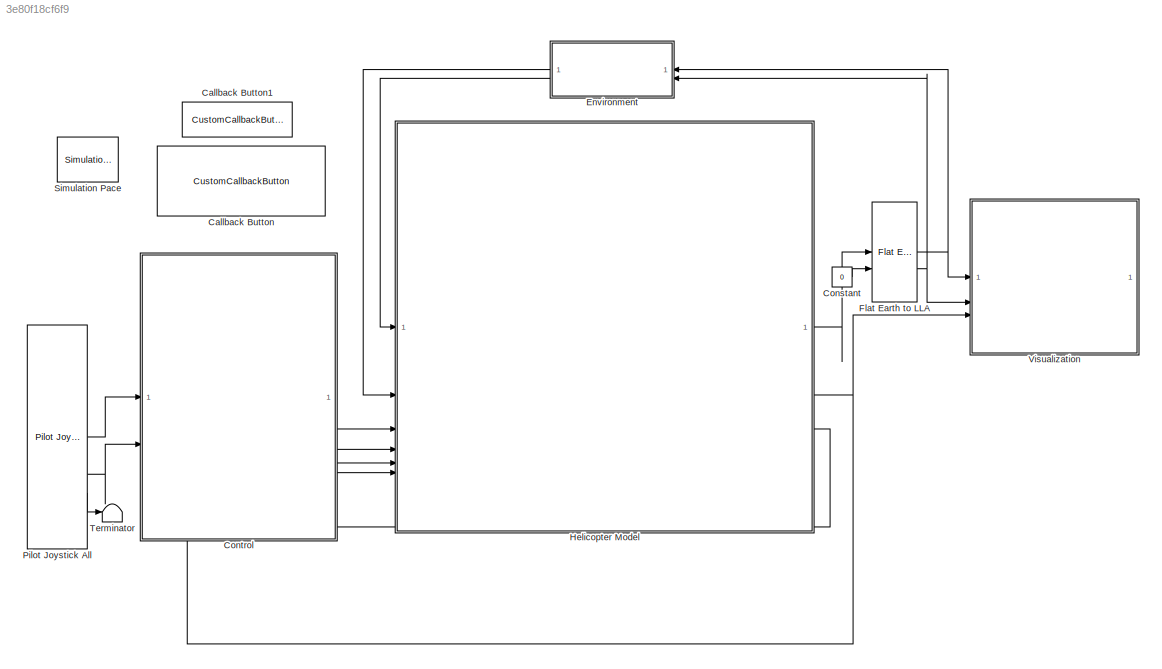
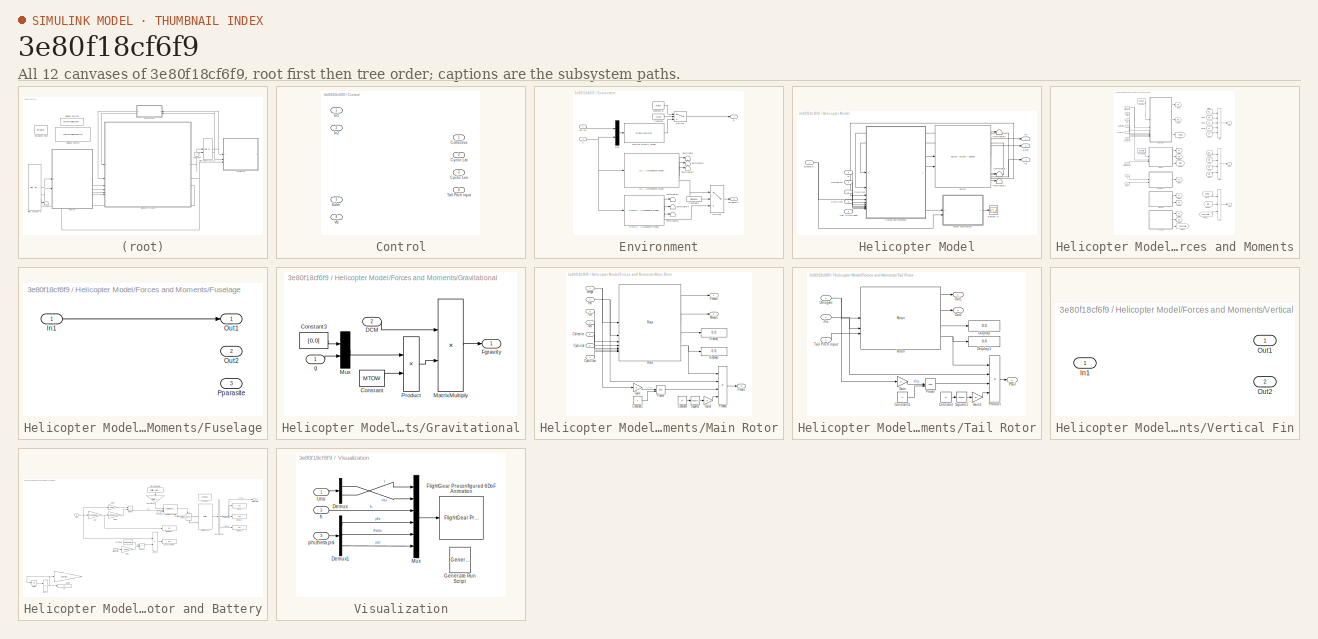
[diagram: thumbnail index - all 12 canvases of the model, root first then tree order]
MODEL slx_3e80f18cf6f9
KIND model
CONFIG AbsTol = auto
CONFIG EnableMultiTasking = off
CONFIG FixedStep = auto
CONFIG MaxStep = auto
CONFIG MinStep = auto
CONFIG RelTol = 1e-3
CONFIG SampleTimeConstraint = Unconstrained
CONFIG SolverName = VariableStepAuto
CONFIG StartTime = 0.0
CONFIG StopTime = 10.0
BLOCK [CustomCallbackButton] Callback Button
  Configuration = {"components":[{"name":"BackgroundImageComponent","settings":{"image":{"size":[0,0],"src":"default","srcOrientation":"Right"},"position":[0,0,1,1]}},{"name":"ButtonStateComponent","settings":{"buttonType":"momentary","clickFcn":"run(\"HelicopterParameterEstimation.mlapp\");","onValue":1,"position":[0,0,1,1],"pressDelay":"500","pressFcn":"","repeatInterval":"0","states":[{"horizontalAlignment":"cen...<+2128ch>
  CustomBackgroundColor = {"color":[0.9568627451,0.9568627451,0.9568627451],"show":true}
BLOCK [CustomCallbackButton] Callback Button1
  Configuration = {"components":[{"name":"BackgroundImageComponent","settings":{"image":{"size":[0,0],"src":"default","srcOrientation":"Right"},"position":[0,0,1,1]}},{"name":"ButtonStateComponent","settings":{"buttonType":"momentary","clickFcn":"clc; clear; close all;","onValue":1,"position":[0,0,1,1],"pressDelay":"500","pressFcn":"","repeatInterval":"0","states":[{"horizontalAlignment":"center","image":{"position...<+2029ch>
  CustomBackgroundColor = {"color":[0.9568627451,0.9568627451,0.9568627451],"show":true}
BLOCK [Constant] Constant
  Value = 0
BLOCK [SubSystem] Control
  PortSchema = {"entries":[{"content":{"sides":[{"content":{"connectorIds":["In1","In2"]},"type":"ConnectorPlacement.EquallySpacedRectSide","uuid":"528401e7-0fef-44be-ba63-acf96d247fb7"},{"content":{"connectorIds":["Out1","Out2","Out3","Out4"],"side":"RIGHT"},"type":"ConnectorPlacement.EquallySpacedRectSide","uuid":"314663aa-6cd9-4175-a49a-1575f8a7b87b"},{"content":{"side":"TOP"},"type":"ConnectorPlacement.Equal...<+404ch>
BLOCK [Outport] Control/Collective
BLOCK [Outport] Control/Cyclic Lat
  Port = 2
BLOCK [Outport] Control/Cyclic Lon
  Port = 3
BLOCK [Inport] Control/Euler
  Port = 3
BLOCK [Inport] Control/In1
BLOCK [Inport] Control/In2
  Port = 2
BLOCK [Outport] Control/Tail Pitch input
  Port = 4
BLOCK [Inport] Control/Vb
  Port = 4
BLOCK [SubSystem] Environment
BLOCK [Reference] Environment/COESA Atmosphere Model  REF=aerolibatmos2/COESA Atmosphere Model
  SourceBlock = aerolibatmos2/COESA Atmosphere Model
  SourceType = Atmosphere Model
BLOCK [Constant] Environment/Constant
  Value = consg
BLOCK [Constant] Environment/Constant1
  Value = atmomodel
BLOCK [Reference] Environment/ISA Atmosphere Model  REF=aerolibatmos2/ISA Atmosphere Model
  SourceBlock = aerolibatmos2/ISA Atmosphere Model
  SourceType = International Standard Atmosphere Model
BLOCK [Mux] Environment/Mux
  DisplayOption = bar
  Inputs = 2
BLOCK [Switch] Environment/Switch
  Criteria = u2 ~= 0
  InputSameDT = off
  SaturateOnIntegerOverflow = off
BLOCK [Switch] Environment/Switch1
  Criteria = u2 ~= 0
  InputSameDT = off
  SaturateOnIntegerOverflow = off
BLOCK [Terminator] Environment/Terminator
BLOCK [Terminator] Environment/Terminator1
BLOCK [Terminator] Environment/Terminator2
BLOCK [Terminator] Environment/Terminator3
BLOCK [Terminator] Environment/Terminator4
BLOCK [Terminator] Environment/Terminator5
BLOCK [GravityWGS84] Environment/WGS84 Gravity Model  
BLOCK [Outport] Environment/airdensity
  NameLocation = right
  Port = 2
BLOCK [Constant] Environment/constant g
  NameLocation = top
  Value = 9.807
BLOCK [Outport] Environment/g
  NameLocation = right
BLOCK [Inport] Environment/h
  NameLocation = left
  Port = 2
BLOCK [Inport] Environment/lat,lon
  NameLocation = left
BLOCK [Reference] Flat Earth to LLA  REF=aerolibtransform2/Flat Earth to LLA
  SourceBlock = aerolibtransform2/Flat Earth to LLA
  SourceType = Flat Earth to LLA
BLOCK [SubSystem] Helicopter Model
BLOCK [Reference] Helicopter Model/6DOF  REF=shared6dof/6DOF (Euler Angles)
  LibrarySourceBlock = aerolib6dof2/6DOF (Euler Angles)
  SourceBlock = shared6dof/6DOF (Euler Angles)
  SourceType = 6DOF EoM (Body Axis)
BLOCK [Scope] Helicopter Model/Battery %
  Floating = off
  NameLocation = right
  NumInputPorts = 1
  ScopeSpecificationString = Simulink.scopes.TimeScopeBlockCfg('CurrentConfiguration', extmgr.ConfigurationSet(extmgr.Configuration('Core','General UI',true),extmgr.Configuration('Core','Source UI',true),extmgr.Configuration('Sources','WiredSimulink',true),extmgr.Configuration('Visuals','Time Domain',true,'SerializedDisplays',{struct('MinYLimReal','-10','MaxYLimReal','10','YLabelReal','','MinYLimMag','0','MaxYLimMag','10','Le...<+810ch>
BLOCK [Inport] Helicopter Model/Collective
  NameLocation = left
  Port = 3
BLOCK [Inport] Helicopter Model/Cyclic Lat
  NameLocation = left
  Port = 4
BLOCK [Inport] Helicopter Model/Cyclic Lon
  NameLocation = left
  Port = 5
BLOCK [Outport] Helicopter Model/Euler
  NameLocation = right
  Port = 2
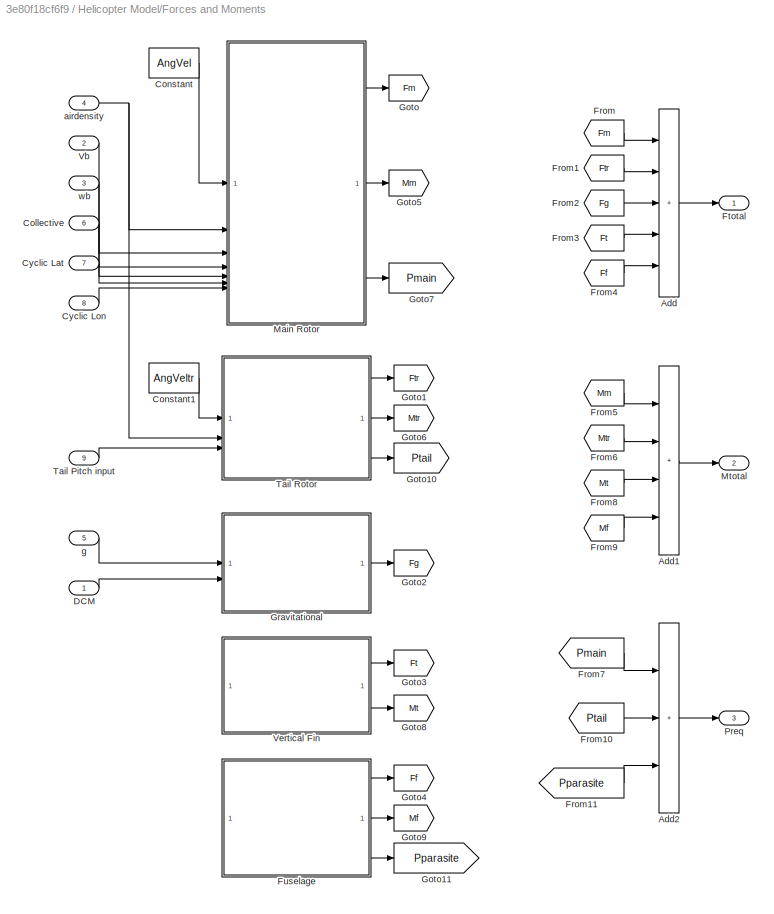
BLOCK [SubSystem] Helicopter Model/Forces and Moments
BLOCK [Sum] Helicopter Model/Forces and Moments/Add
  IconShape = rectangular
  Inputs = +++++
BLOCK [Sum] Helicopter Model/Forces and Moments/Add1
  IconShape = rectangular
  Inputs = ++++
BLOCK [Sum] Helicopter Model/Forces and Moments/Add2
  IconShape = rectangular
  Inputs = +++
BLOCK [Inport] Helicopter Model/Forces and Moments/Collective
  Port = 6
BLOCK [Constant] Helicopter Model/Forces and Moments/Constant
  Value = AngVel
BLOCK [Constant] Helicopter Model/Forces and Moments/Constant1
  Value = AngVeltr
BLOCK [Inport] Helicopter Model/Forces and Moments/Cyclic Lat
  Port = 7
BLOCK [Inport] Helicopter Model/Forces and Moments/Cyclic Lon
  Port = 8
BLOCK [Inport] Helicopter Model/Forces and Moments/DCM
BLOCK [From] Helicopter Model/Forces and Moments/From
  GotoTag = Fm
BLOCK [From] Helicopter Model/Forces and Moments/From1
  GotoTag = Ftr
BLOCK [From] Helicopter Model/Forces and Moments/From10
  GotoTag = Ptail
BLOCK [From] Helicopter Model/Forces and Moments/From11
  GotoTag = Pparasite
BLOCK [From] Helicopter Model/Forces and Moments/From2
  GotoTag = Fg
BLOCK [From] Helicopter Model/Forces and Moments/From3
  GotoTag = Ft
BLOCK [From] Helicopter Model/Forces and Moments/From4
  GotoTag = Ff
BLOCK [From] Helicopter Model/Forces and Moments/From5
  GotoTag = Mm
BLOCK [From] Helicopter Model/Forces and Moments/From6
  GotoTag = Mtr
BLOCK [From] Helicopter Model/Forces and Moments/From7
  GotoTag = Pmain
BLOCK [From] Helicopter Model/Forces and Moments/From8
  GotoTag = Mt
BLOCK [From] Helicopter Model/Forces and Moments/From9
  GotoTag = Mf
BLOCK [Outport] Helicopter Model/Forces and Moments/Ftotal
BLOCK [SubSystem] Helicopter Model/Forces and Moments/Fuselage
BLOCK [Inport] Helicopter Model/Forces and Moments/Fuselage/In1
BLOCK [Outport] Helicopter Model/Forces and Moments/Fuselage/Out1
BLOCK [Outport] Helicopter Model/Forces and Moments/Fuselage/Out2
  Port = 2
BLOCK [Outport] Helicopter Model/Forces and Moments/Fuselage/Pparasite
  Port = 3
BLOCK [Goto] Helicopter Model/Forces and Moments/Goto
  GotoTag = Fm
BLOCK [Goto] Helicopter Model/Forces and Moments/Goto1
  GotoTag = Ftr
BLOCK [Goto] Helicopter Model/Forces and Moments/Goto10
  GotoTag = Ptail
BLOCK [Goto] Helicopter Model/Forces and Moments/Goto11
  GotoTag = Pparasite
BLOCK [Goto] Helicopter Model/Forces and Moments/Goto2
  GotoTag = Fg
BLOCK [Goto] Helicopter Model/Forces and Moments/Goto3
  GotoTag = Ft
BLOCK [Goto] Helicopter Model/Forces and Moments/Goto4
  GotoTag = Ff
BLOCK [Goto] Helicopter Model/Forces and Moments/Goto5
  GotoTag = Mm
BLOCK [Goto] Helicopter Model/Forces and Moments/Goto6
  GotoTag = Mtr
BLOCK [Goto] Helicopter Model/Forces and Moments/Goto7
  GotoTag = Pmain
BLOCK [Goto] Helicopter Model/Forces and Moments/Goto8
  GotoTag = Mt
BLOCK [Goto] Helicopter Model/Forces and Moments/Goto9
  GotoTag = Mf
BLOCK [SubSystem] Helicopter Model/Forces and Moments/Gravitational
BLOCK [Constant] Helicopter Model/Forces and Moments/Gravitational/Constant
  Value = MTOW
BLOCK [Constant] Helicopter Model/Forces and Moments/Gravitational/Constant3
  Value = [0,0]
BLOCK [Inport] Helicopter Model/Forces and Moments/Gravitational/DCM
  NameLocation = top
  Port = 2
BLOCK [Outport] Helicopter Model/Forces and Moments/Gravitational/Fgravity
  NameLocation = right
BLOCK [Product] Helicopter Model/Forces and Moments/Gravitational/MatrixMultiply
  Multiplication = Matrix(*)
BLOCK [Mux] Helicopter Model/Forces and Moments/Gravitational/Mux
  DisplayOption = bar
  Inputs = 2
BLOCK [Product] Helicopter Model/Forces and Moments/Gravitational/Product
BLOCK [Inport] Helicopter Model/Forces and Moments/Gravitational/g
  NameLocation = left
BLOCK [SubSystem] Helicopter Model/Forces and Moments/Main Rotor
BLOCK [Inport] Helicopter Model/Forces and Moments/Main Rotor/Collective
  Port = 5
BLOCK [Constant] Helicopter Model/Forces and Moments/Main Rotor/Constant
  Value = R
BLOCK [Constant] Helicopter Model/Forces and Moments/Main Rotor/Constant1
  Value = 3
BLOCK [Inport] Helicopter Model/Forces and Moments/Main Rotor/Cyclic Lat
  Port = 6
BLOCK [Inport] Helicopter Model/Forces and Moments/Main Rotor/Cyclic Lon
  Port = 7
BLOCK [Display] Helicopter Model/Forces and Moments/Main Rotor/Display
  Decimation = 1
BLOCK [Display] Helicopter Model/Forces and Moments/Main Rotor/Display1
  Decimation = 1
BLOCK [Outport] Helicopter Model/Forces and Moments/Main Rotor/Fmain
BLOCK [Gain] Helicopter Model/Forces and Moments/Main Rotor/Gain
  Gain = R
BLOCK [Gain] Helicopter Model/Forces and Moments/Main Rotor/Gain1
  Gain = pi
BLOCK [Outport] Helicopter Model/Forces and Moments/Main Rotor/Mmain
  Port = 2
BLOCK [Outport] Helicopter Model/Forces and Moments/Main Rotor/Pmain
  Port = 3
BLOCK [Math] Helicopter Model/Forces and Moments/Main Rotor/Power
  Operator = pow
BLOCK [Product] Helicopter Model/Forces and Moments/Main Rotor/Product
  Inputs = 4
BLOCK [Rotor] Helicopter Model/Forces and Moments/Main Rotor/Rotor
  CTCQMode = Compute using BEMT
  CTout = on
  Nb = Nb
  cd0 = 0.009
  chord = c
  clalpha = CLalpha
  controlInput = on
  gamma = 10
  modelMode = With flap effects
  radius = R
  thetaRoot = BldRootAng
  thetaTwist = BldTwstAng
BLOCK [Math] Helicopter Model/Forces and Moments/Main Rotor/Square1
  Operator = square
BLOCK [Inport] Helicopter Model/Forces and Moments/Main Rotor/Vb
  Port = 3
BLOCK [Inport] Helicopter Model/Forces and Moments/Main Rotor/omega
BLOCK [Inport] Helicopter Model/Forces and Moments/Main Rotor/rho
  Port = 2
BLOCK [Inport] Helicopter Model/Forces and Moments/Main Rotor/wb
  Port = 4
BLOCK [Outport] Helicopter Model/Forces and Moments/Mtotal
  Port = 2
BLOCK [Outport] Helicopter Model/Forces and Moments/Preq
  Port = 3
BLOCK [Inport] Helicopter Model/Forces and Moments/Tail Pitch input
  Port = 9
BLOCK [SubSystem] Helicopter Model/Forces and Moments/Tail Rotor
BLOCK [Constant] Helicopter Model/Forces and Moments/Tail Rotor/Constant
  Value = R
BLOCK [Constant] Helicopter Model/Forces and Moments/Tail Rotor/Constant1
  Value = 3
BLOCK [Display] Helicopter Model/Forces and Moments/Tail Rotor/Display
  Decimation = 1
BLOCK [Display] Helicopter Model/Forces and Moments/Tail Rotor/Display1
  Decimation = 1
BLOCK [Gain] Helicopter Model/Forces and Moments/Tail Rotor/Gain
  Gain = R
BLOCK [Gain] Helicopter Model/Forces and Moments/Tail Rotor/Gain1
  Gain = pi
BLOCK [Inport] Helicopter Model/Forces and Moments/Tail Rotor/Omegatr
BLOCK [Outport] Helicopter Model/Forces and Moments/Tail Rotor/Out1
BLOCK [Outport] Helicopter Model/Forces and Moments/Tail Rotor/Out2
  Port = 2
BLOCK [Math] Helicopter Model/Forces and Moments/Tail Rotor/Power
  Operator = pow
BLOCK [Product] Helicopter Model/Forces and Moments/Tail Rotor/Product
  Inputs = 4
BLOCK [Outport] Helicopter Model/Forces and Moments/Tail Rotor/Ptail
  Port = 3
BLOCK [Rotor] Helicopter Model/Forces and Moments/Tail Rotor/Rotor
  CTCQMode = Compute using BEMT
  CTout = on
  Nb = Nbtr
  cd0 = 0.009
  clalpha = CLalphaTR
  controlInput = on
  radius = Rtr
  thetaRoot = 0
  thetaTwist = 0
BLOCK [Math] Helicopter Model/Forces and Moments/Tail Rotor/Square1
  Operator = square
BLOCK [Inport] Helicopter Model/Forces and Moments/Tail Rotor/Tail Pitch input
  Port = 3
BLOCK [Inport] Helicopter Model/Forces and Moments/Tail Rotor/rho
  Port = 2
BLOCK [Inport] Helicopter Model/Forces and Moments/Vb
  Port = 2
BLOCK [SubSystem] Helicopter Model/Forces and Moments/Vertical Fin
BLOCK [Inport] Helicopter Model/Forces and Moments/Vertical Fin/In1
BLOCK [Outport] Helicopter Model/Forces and Moments/Vertical Fin/Out1
BLOCK [Outport] Helicopter Model/Forces and Moments/Vertical Fin/Out2
  Port = 2
BLOCK [Inport] Helicopter Model/Forces and Moments/airdensity
  Port = 4
BLOCK [Inport] Helicopter Model/Forces and Moments/g
  Port = 5
BLOCK [Inport] Helicopter Model/Forces and Moments/wb
  Port = 3
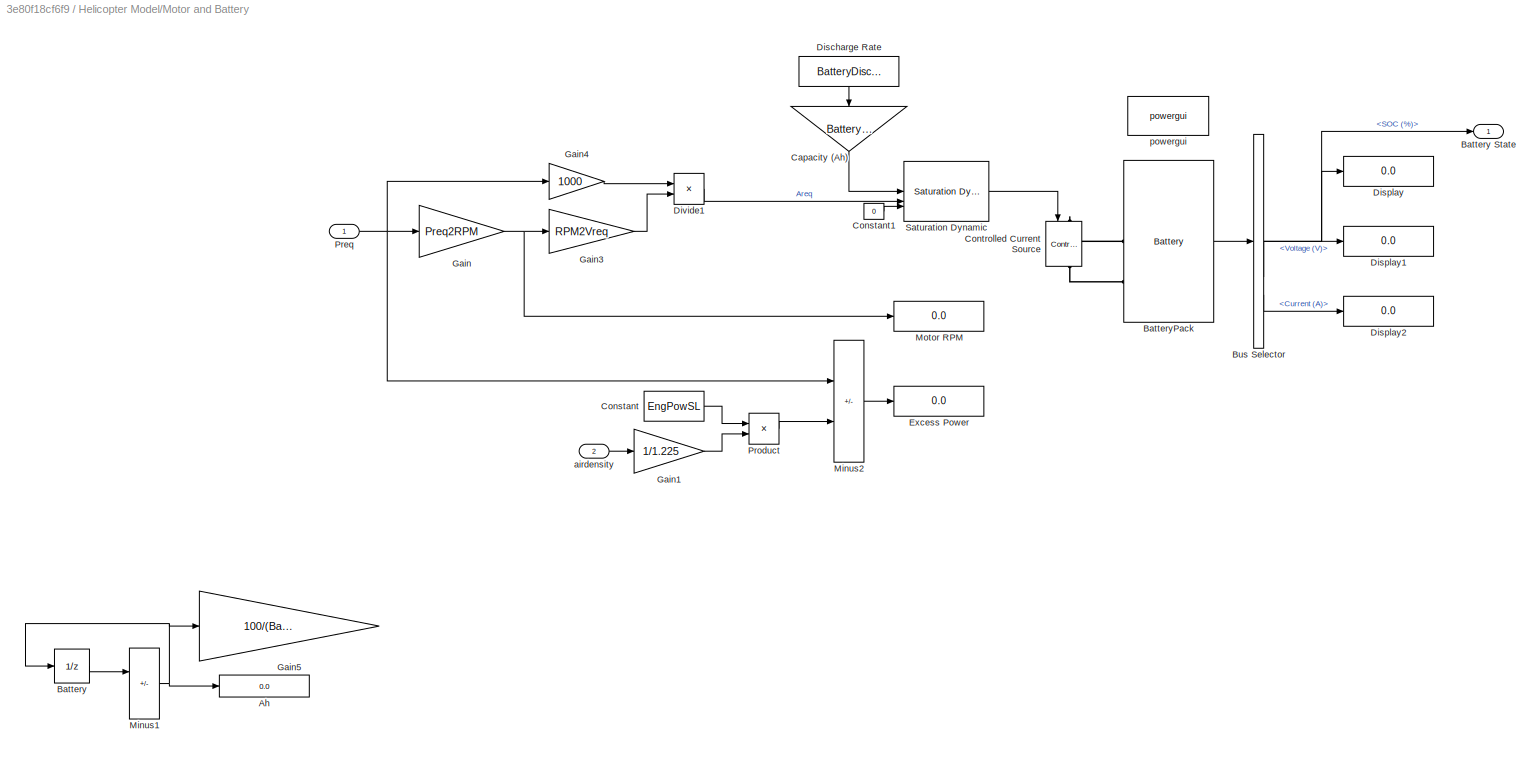
BLOCK [SubSystem] Helicopter Model/Motor and Battery
BLOCK [Display] Helicopter Model/Motor and Battery/Ah
  Commented = on
  Decimation = 1
  Format = bank
  NameLocation = right
BLOCK [UnitDelay] Helicopter Model/Motor and Battery/Battery
  Commented = on
  HasFrameUpgradeWarning = on
  InitialCondition = BatteryCap*3600/1000
  NameLocation = top
BLOCK [Outport] Helicopter Model/Motor and Battery/Battery State
  NameLocation = right
BLOCK [Reference] Helicopter Model/Motor and Battery/BatteryPack  REF=spsBatteryLib/Battery
  LibrarySourceBlock = sps_lib/Sources/Battery
  SourceBlock = spsBatteryLib/Battery
  SourceType = Battery
BLOCK [BusSelector] Helicopter Model/Motor and Battery/Bus Selector
  NameLocation = top
  OutputSignals = SOC (%),Voltage (V),Current (A)
BLOCK [Gain] Helicopter Model/Motor and Battery/Capacity (Ah)
  Gain = BatteryCap/1000
  NameLocation = right
BLOCK [Constant] Helicopter Model/Motor and Battery/Constant
  Value = EngPowSL
BLOCK [Constant] Helicopter Model/Motor and Battery/Constant1
  Value = 0
BLOCK [Reference] Helicopter Model/Motor and Battery/Controlled Current Source  REF=spsControlledCurrentSourceLib/Controlled Current Source
  LibrarySourceBlock = sps_lib/Sources/Controlled Current Source
  NameLocation = top
  SourceBlock = spsControlledCurrentSourceLib/Controlled Current Source
  SourceType = Controlled Current Source
BLOCK [Constant] Helicopter Model/Motor and Battery/Discharge Rate
  NameLocation = top
  Value = BatteryDischrgRate
BLOCK [Display] Helicopter Model/Motor and Battery/Display
  Decimation = 1
  NameLocation = top
BLOCK [Display] Helicopter Model/Motor and Battery/Display1
  Decimation = 1
  NameLocation = top
BLOCK [Display] Helicopter Model/Motor and Battery/Display2
  Decimation = 1
  NameLocation = top
BLOCK [Product] Helicopter Model/Motor and Battery/Divide1
  Inputs = */
BLOCK [Display] Helicopter Model/Motor and Battery/Excess Power
  Decimation = 1
  NameLocation = right
BLOCK [Gain] Helicopter Model/Motor and Battery/Gain
  Gain = Preq2RPM
BLOCK [Gain] Helicopter Model/Motor and Battery/Gain1
  Gain = 1/1.225
BLOCK [Gain] Helicopter Model/Motor and Battery/Gain3
  Gain = RPM2Vreq
BLOCK [Gain] Helicopter Model/Motor and Battery/Gain4
  Gain = 1000
BLOCK [Gain] Helicopter Model/Motor and Battery/Gain5
  Commented = on
  Gain = 100/(BatteryCap*3600/1000)
BLOCK [Sum] Helicopter Model/Motor and Battery/Minus1
  Commented = on
  IconShape = rectangular
  Inputs = +-
BLOCK [Sum] Helicopter Model/Motor and Battery/Minus2
  IconShape = rectangular
  Inputs = -+
BLOCK [Display] Helicopter Model/Motor and Battery/Motor RPM
  Decimation = 1
  NameLocation = right
BLOCK [Inport] Helicopter Model/Motor and Battery/Preq
  NameLocation = left
BLOCK [Product] Helicopter Model/Motor and Battery/Product
BLOCK [Reference] Helicopter Model/Motor and Battery/Saturation Dynamic  REF=simulink/Discontinuities/Saturation
Dynamic
  NameLocation = top
  SourceBlock = simulink/Discontinuities/Saturation\nDynamic
  SourceType = Saturation Dynamic
BLOCK [Inport] Helicopter Model/Motor and Battery/airdensity
  Port = 2
BLOCK [Reference] Helicopter Model/Motor and Battery/powergui  REF=spspowerguiLib/powergui
  LibrarySourceBlock = sps_lib/powergui
  Priority = 1
  SourceBlock = spspowerguiLib/powergui
  SourceType = PSB option menu block
BLOCK [Inport] Helicopter Model/Tail Pitch input
  NameLocation = left
  Port = 6
BLOCK [Terminator] Helicopter Model/Terminator
  NameLocation = right
BLOCK [Terminator] Helicopter Model/Terminator1
  NameLocation = right
BLOCK [Terminator] Helicopter Model/Terminator2
BLOCK [Outport] Helicopter Model/Vb
  NameLocation = right
  Port = 3
BLOCK [Outport] Helicopter Model/Xe
  NameLocation = right
BLOCK [Inport] Helicopter Model/airdensity
  NameLocation = left
BLOCK [Inport] Helicopter Model/g
  NameLocation = left
  Port = 2
BLOCK [Reference] Pilot Joystick All  REF=aerolibanimutils/Pilot Joystick
  LibrarySourceBlock = aerolibanimutils/Pilot Joystick All
  SourceBlock = aerolibanimutils/Pilot Joystick
  SourceType = PilotJoystick
BLOCK [Reference] Simulation Pace  REF=aerolibanimutils/Simulation Pace
  AttributesFormatString = %<SleepMode>\n%<SimulationPace> sec/sec
  SourceBlock = aerolibanimutils/Simulation Pace
  SourceType = Simulation Pace
BLOCK [Terminator] Terminator
BLOCK [SubSystem] Visualization
BLOCK [Demux] Visualization/Demux
  Outputs = 2
BLOCK [Demux] Visualization/Demux1
  Outputs = 3
BLOCK [Reference] Visualization/FlightGear Preconfigured 6DoF Animation   REF=aerolibfltsims/FlightGear
Preconfigured
6DoF Animation
  NameLocation = top
  SourceBlock = aerolibfltsims/FlightGear\nPreconfigured\n6DoF Animation
  SourceType = FlightGearQuick6DoFAnimation
BLOCK [Reference] Visualization/Generate Run Script   REF=aerolibfltsims/Generate
Run Script
  SourceBlock = aerolibfltsims/Generate\nRun Script
  SourceType = Generate FlightGear Run Script
BLOCK [Mux] Visualization/Mux
  DisplayOption = bar
  Inputs = 6
BLOCK [Inport] Visualization/h
  Port = 2
BLOCK [Inport] Visualization/l,mu
BLOCK [Inport] Visualization/phi,theta,psi
  Port = 3
LINE Constant:1 -> Flat Earth to LLA:2
LINE Control:1 -> Helicopter Model:3
LINE Control:2 -> Helicopter Model:4
LINE Control:3 -> Helicopter Model:5
LINE Control:4 -> Helicopter Model:6
LINE Environment/COESA Atmosphere Model:1 -> Environment/Terminator3:1
LINE Environment/COESA Atmosphere Model:2 -> Environment/Terminator4:1
LINE Environment/COESA Atmosphere Model:3 -> Environment/Terminator5:1
LINE Environment/COESA Atmosphere Model:4 -> Environment/Switch1:3
LINE Environment/Constant1:1 -> Environment/Switch1:2
LINE Environment/Constant:1 -> Environment/Switch:2
LINE Environment/ISA Atmosphere Model:1 -> Environment/Terminator:1
LINE Environment/ISA Atmosphere Model:2 -> Environment/Terminator1:1
LINE Environment/ISA Atmosphere Model:3 -> Environment/Terminator2:1
LINE Environment/ISA Atmosphere Model:4 -> Environment/Switch1:1
LINE Environment/Mux:1 -> Environment/WGS84 Gravity Model  :1
LINE Environment/Switch1:1 -> Environment/airdensity:1
LINE Environment/Switch:1 -> Environment/g:1
LINE Environment/WGS84 Gravity Model  :1 -> Environment/Switch:3
LINE Environment/constant g:1 -> Environment/Switch:1
NET Environment/h:1 -> Environment/COESA Atmosphere Model:1, Environment/ISA Atmosphere Model:1, Environment/Mux:2
LINE Environment/lat,lon:1 -> Environment/Mux:1
LINE Environment:1 -> Helicopter Model:2
LINE Environment:2 -> Helicopter Model:1
NET Flat Earth to LLA:1 -> Environment:1, Visualization:1
NET Flat Earth to LLA:2 -> Environment:2, Visualization:2
LINE Helicopter Model/6DOF:1 -> Helicopter Model/Terminator2:1
LINE Helicopter Model/6DOF:2 -> Helicopter Model/Xe:1
LINE Helicopter Model/6DOF:3 -> Helicopter Model/Euler:1
LINE Helicopter Model/6DOF:4 -> Helicopter Model/Forces and Moments:1
NET Helicopter Model/6DOF:5 -> Helicopter Model/Forces and Moments:2, Helicopter Model/Vb:1
LINE Helicopter Model/6DOF:6 -> Helicopter Model/Forces and Moments:3
LINE Helicopter Model/6DOF:7 -> Helicopter Model/Terminator:1
LINE Helicopter Model/6DOF:8 -> Helicopter Model/Terminator1:1
LINE Helicopter Model/Collective:1 -> Helicopter Model/Forces and Moments:6
LINE Helicopter Model/Cyclic Lat:1 -> Helicopter Model/Forces and Moments:7
LINE Helicopter Model/Cyclic Lon:1 -> Helicopter Model/Forces and Moments:8
LINE Helicopter Model/Forces and Moments/Add1:1 -> Helicopter Model/Forces and Moments/Mtotal:1
LINE Helicopter Model/Forces and Moments/Add2:1 -> Helicopter Model/Forces and Moments/Preq:1
LINE Helicopter Model/Forces and Moments/Add:1 -> Helicopter Model/Forces and Moments/Ftotal:1
LINE Helicopter Model/Forces and Moments/Collective:1 -> Helicopter Model/Forces and Moments/Main Rotor:5
LINE Helicopter Model/Forces and Moments/Constant1:1 -> Helicopter Model/Forces and Moments/Tail Rotor:1
LINE Helicopter Model/Forces and Moments/Constant:1 -> Helicopter Model/Forces and Moments/Main Rotor:1
LINE Helicopter Model/Forces and Moments/Cyclic Lat:1 -> Helicopter Model/Forces and Moments/Main Rotor:6
LINE Helicopter Model/Forces and Moments/Cyclic Lon:1 -> Helicopter Model/Forces and Moments/Main Rotor:7
LINE Helicopter Model/Forces and Moments/DCM:1 -> Helicopter Model/Forces and Moments/Gravitational:2
LINE Helicopter Model/Forces and Moments/From10:1 -> Helicopter Model/Forces and Moments/Add2:2
LINE Helicopter Model/Forces and Moments/From11:1 -> Helicopter Model/Forces and Moments/Add2:3
LINE Helicopter Model/Forces and Moments/From1:1 -> Helicopter Model/Forces and Moments/Add:2
LINE Helicopter Model/Forces and Moments/From2:1 -> Helicopter Model/Forces and Moments/Add:3
LINE Helicopter Model/Forces and Moments/From3:1 -> Helicopter Model/Forces and Moments/Add:4
LINE Helicopter Model/Forces and Moments/From4:1 -> Helicopter Model/Forces and Moments/Add:5
LINE Helicopter Model/Forces and Moments/From5:1 -> Helicopter Model/Forces and Moments/Add1:1
LINE Helicopter Model/Forces and Moments/From6:1 -> Helicopter Model/Forces and Moments/Add1:2
LINE Helicopter Model/Forces and Moments/From7:1 -> Helicopter Model/Forces and Moments/Add2:1
LINE Helicopter Model/Forces and Moments/From8:1 -> Helicopter Model/Forces and Moments/Add1:3
LINE Helicopter Model/Forces and Moments/From9:1 -> Helicopter Model/Forces and Moments/Add1:4
LINE Helicopter Model/Forces and Moments/From:1 -> Helicopter Model/Forces and Moments/Add:1
LINE Helicopter Model/Forces and Moments/Fuselage/In1:1 -> Helicopter Model/Forces and Moments/Fuselage/Out1:1
LINE Helicopter Model/Forces and Moments/Fuselage:1 -> Helicopter Model/Forces and Moments/Goto4:1
LINE Helicopter Model/Forces and Moments/Fuselage:2 -> Helicopter Model/Forces and Moments/Goto9:1
LINE Helicopter Model/Forces and Moments/Fuselage:3 -> Helicopter Model/Forces and Moments/Goto11:1
LINE Helicopter Model/Forces and Moments/Gravitational/Constant3:1 -> Helicopter Model/Forces and Moments/Gravitational/Mux:1
LINE Helicopter Model/Forces and Moments/Gravitational/Constant:1 -> Helicopter Model/Forces and Moments/Gravitational/Product:2
LINE Helicopter Model/Forces and Moments/Gravitational/DCM:1 -> Helicopter Model/Forces and Moments/Gravitational/MatrixMultiply:1
LINE Helicopter Model/Forces and Moments/Gravitational/MatrixMultiply:1 -> Helicopter Model/Forces and Moments/Gravitational/Fgravity:1
LINE Helicopter Model/Forces and Moments/Gravitational/Mux:1 -> Helicopter Model/Forces and Moments/Gravitational/Product:1
LINE Helicopter Model/Forces and Moments/Gravitational/Product:1 -> Helicopter Model/Forces and Moments/Gravitational/MatrixMultiply:2
LINE Helicopter Model/Forces and Moments/Gravitational/g:1 -> Helicopter Model/Forces and Moments/Gravitational/Mux:2
LINE Helicopter Model/Forces and Moments/Gravitational:1 -> Helicopter Model/Forces and Moments/Goto2:1
LINE Helicopter Model/Forces and Moments/Main Rotor/Collective:1 -> Helicopter Model/Forces and Moments/Main Rotor/Rotor:5
LINE Helicopter Model/Forces and Moments/Main Rotor/Constant1:1 -> Helicopter Model/Forces and Moments/Main Rotor/Power:2
LINE Helicopter Model/Forces and Moments/Main Rotor/Constant:1 -> Helicopter Model/Forces and Moments/Main Rotor/Square1:1
LINE Helicopter Model/Forces and Moments/Main Rotor/Cyclic Lat:1 -> Helicopter Model/Forces and Moments/Main Rotor/Rotor:6
LINE Helicopter Model/Forces and Moments/Main Rotor/Cyclic Lon:1 -> Helicopter Model/Forces and Moments/Main Rotor/Rotor:7
LINE Helicopter Model/Forces and Moments/Main Rotor/Gain1:1 -> Helicopter Model/Forces and Moments/Main Rotor/Product:4
LINE Helicopter Model/Forces and Moments/Main Rotor/Gain:1 -> Helicopter Model/Forces and Moments/Main Rotor/Power:1
LINE Helicopter Model/Forces and Moments/Main Rotor/Power:1 -> Helicopter Model/Forces and Moments/Main Rotor/Product:3
LINE Helicopter Model/Forces and Moments/Main Rotor/Product:1 -> Helicopter Model/Forces and Moments/Main Rotor/Pmain:1
LINE Helicopter Model/Forces and Moments/Main Rotor/Rotor:1 -> Helicopter Model/Forces and Moments/Main Rotor/Fmain:1
LINE Helicopter Model/Forces and Moments/Main Rotor/Rotor:2 -> Helicopter Model/Forces and Moments/Main Rotor/Mmain:1
LINE Helicopter Model/Forces and Moments/Main Rotor/Rotor:3 -> Helicopter Model/Forces and Moments/Main Rotor/Display:1
NET Helicopter Model/Forces and Moments/Main Rotor/Rotor:4 -> Helicopter Model/Forces and Moments/Main Rotor/Display1:1, Helicopter Model/Forces and Moments/Main Rotor/Product:1
LINE Helicopter Model/Forces and Moments/Main Rotor/Square1:1 -> Helicopter Model/Forces and Moments/Main Rotor/Gain1:1
LINE Helicopter Model/Forces and Moments/Main Rotor/Vb:1 -> Helicopter Model/Forces and Moments/Main Rotor/Rotor:3
NET Helicopter Model/Forces and Moments/Main Rotor/omega:1 -> Helicopter Model/Forces and Moments/Main Rotor/Gain:1, Helicopter Model/Forces and Moments/Main Rotor/Rotor:1
NET Helicopter Model/Forces and Moments/Main Rotor/rho:1 -> Helicopter Model/Forces and Moments/Main Rotor/Product:2, Helicopter Model/Forces and Moments/Main Rotor/Rotor:2
LINE Helicopter Model/Forces and Moments/Main Rotor/wb:1 -> Helicopter Model/Forces and Moments/Main Rotor/Rotor:4
LINE Helicopter Model/Forces and Moments/Main Rotor:1 -> Helicopter Model/Forces and Moments/Goto:1
LINE Helicopter Model/Forces and Moments/Main Rotor:2 -> Helicopter Model/Forces and Moments/Goto5:1
LINE Helicopter Model/Forces and Moments/Main Rotor:3 -> Helicopter Model/Forces and Moments/Goto7:1
LINE Helicopter Model/Forces and Moments/Tail Pitch input:1 -> Helicopter Model/Forces and Moments/Tail Rotor:3
LINE Helicopter Model/Forces and Moments/Tail Rotor/Constant1:1 -> Helicopter Model/Forces and Moments/Tail Rotor/Power:2
LINE Helicopter Model/Forces and Moments/Tail Rotor/Constant:1 -> Helicopter Model/Forces and Moments/Tail Rotor/Square1:1
LINE Helicopter Model/Forces and Moments/Tail Rotor/Gain1:1 -> Helicopter Model/Forces and Moments/Tail Rotor/Product:4
LINE Helicopter Model/Forces and Moments/Tail Rotor/Gain:1 -> Helicopter Model/Forces and Moments/Tail Rotor/Power:1
NET Helicopter Model/Forces and Moments/Tail Rotor/Omegatr:1 -> Helicopter Model/Forces and Moments/Tail Rotor/Gain:1, Helicopter Model/Forces and Moments/Tail Rotor/Rotor:1
LINE Helicopter Model/Forces and Moments/Tail Rotor/Power:1 -> Helicopter Model/Forces and Moments/Tail Rotor/Product:3
LINE Helicopter Model/Forces and Moments/Tail Rotor/Product:1 -> Helicopter Model/Forces and Moments/Tail Rotor/Ptail:1
LINE Helicopter Model/Forces and Moments/Tail Rotor/Rotor:1 -> Helicopter Model/Forces and Moments/Tail Rotor/Out1:1
LINE Helicopter Model/Forces and Moments/Tail Rotor/Rotor:2 -> Helicopter Model/Forces and Moments/Tail Rotor/Out2:1
LINE Helicopter Model/Forces and Moments/Tail Rotor/Rotor:3 -> Helicopter Model/Forces and Moments/Tail Rotor/Display:1
NET Helicopter Model/Forces and Moments/Tail Rotor/Rotor:4 -> Helicopter Model/Forces and Moments/Tail Rotor/Display1:1, Helicopter Model/Forces and Moments/Tail Rotor/Product:1
LINE Helicopter Model/Forces and Moments/Tail Rotor/Square1:1 -> Helicopter Model/Forces and Moments/Tail Rotor/Gain1:1
LINE Helicopter Model/Forces and Moments/Tail Rotor/Tail Pitch input:1 -> Helicopter Model/Forces and Moments/Tail Rotor/Rotor:3
NET Helicopter Model/Forces and Moments/Tail Rotor/rho:1 -> Helicopter Model/Forces and Moments/Tail Rotor/Product:2, Helicopter Model/Forces and Moments/Tail Rotor/Rotor:2
LINE Helicopter Model/Forces and Moments/Tail Rotor:1 -> Helicopter Model/Forces and Moments/Goto1:1
LINE Helicopter Model/Forces and Moments/Tail Rotor:2 -> Helicopter Model/Forces and Moments/Goto6:1
LINE Helicopter Model/Forces and Moments/Tail Rotor:3 -> Helicopter Model/Forces and Moments/Goto10:1
LINE Helicopter Model/Forces and Moments/Vb:1 -> Helicopter Model/Forces and Moments/Main Rotor:3
LINE Helicopter Model/Forces and Moments/Vertical Fin:1 -> Helicopter Model/Forces and Moments/Goto3:1
LINE Helicopter Model/Forces and Moments/Vertical Fin:2 -> Helicopter Model/Forces and Moments/Goto8:1
NET Helicopter Model/Forces and Moments/airdensity:1 -> Helicopter Model/Forces and Moments/Main Rotor:2, Helicopter Model/Forces and Moments/Tail Rotor:2
LINE Helicopter Model/Forces and Moments/g:1 -> Helicopter Model/Forces and Moments/Gravitational:1
LINE Helicopter Model/Forces and Moments/wb:1 -> Helicopter Model/Forces and Moments/Main Rotor:4
LINE Helicopter Model/Forces and Moments:1 -> Helicopter Model/6DOF:1
LINE Helicopter Model/Forces and Moments:2 -> Helicopter Model/6DOF:2
LINE Helicopter Model/Forces and Moments:3 -> Helicopter Model/Motor and Battery:1
LINE Helicopter Model/Motor and Battery/Battery:1 -> Helicopter Model/Motor and Battery/Minus1:1
LINE Helicopter Model/Motor and Battery/BatteryPack:1 -> Helicopter Model/Motor and Battery/Bus Selector:1
NET Helicopter Model/Motor and Battery/Bus Selector:1 -> Helicopter Model/Motor and Battery/Battery State:1, Helicopter Model/Motor and Battery/Display:1
LINE Helicopter Model/Motor and Battery/Bus Selector:2 -> Helicopter Model/Motor and Battery/Display1:1
LINE Helicopter Model/Motor and Battery/Bus Selector:3 -> Helicopter Model/Motor and Battery/Display2:1
LINE Helicopter Model/Motor and Battery/Capacity (Ah):1 -> Helicopter Model/Motor and Battery/Saturation Dynamic:1
LINE Helicopter Model/Motor and Battery/Constant1:1 -> Helicopter Model/Motor and Battery/Saturation Dynamic:3
LINE Helicopter Model/Motor and Battery/Constant:1 -> Helicopter Model/Motor and Battery/Product:1
LINE Helicopter Model/Motor and Battery/Discharge Rate:1 -> Helicopter Model/Motor and Battery/Capacity (Ah):1
LINE Helicopter Model/Motor and Battery/Divide1:1 -> Helicopter Model/Motor and Battery/Saturation Dynamic:2
LINE Helicopter Model/Motor and Battery/Gain1:1 -> Helicopter Model/Motor and Battery/Product:2
LINE Helicopter Model/Motor and Battery/Gain3:1 -> Helicopter Model/Motor and Battery/Divide1:2
LINE Helicopter Model/Motor and Battery/Gain4:1 -> Helicopter Model/Motor and Battery/Divide1:1
NET Helicopter Model/Motor and Battery/Gain:1 -> Helicopter Model/Motor and Battery/Gain3:1, Helicopter Model/Motor and Battery/Motor RPM:1
NET Helicopter Model/Motor and Battery/Minus1:1 -> Helicopter Model/Motor and Battery/Ah:1, Helicopter Model/Motor and Battery/Battery:1, Helicopter Model/Motor and Battery/Gain5:1
LINE Helicopter Model/Motor and Battery/Minus2:1 -> Helicopter Model/Motor and Battery/Excess Power:1
NET Helicopter Model/Motor and Battery/Preq:1 -> Helicopter Model/Motor and Battery/Gain4:1, Helicopter Model/Motor and Battery/Gain:1, Helicopter Model/Motor and Battery/Minus2:1
LINE Helicopter Model/Motor and Battery/Product:1 -> Helicopter Model/Motor and Battery/Minus2:2
LINE Helicopter Model/Motor and Battery/Saturation Dynamic:1 -> Helicopter Model/Motor and Battery/Controlled Current Source:1
LINE Helicopter Model/Motor and Battery/airdensity:1 -> Helicopter Model/Motor and Battery/Gain1:1
LINE Helicopter Model/Motor and Battery:1 -> Helicopter Model/Battery %:1
LINE Helicopter Model/Tail Pitch input:1 -> Helicopter Model/Forces and Moments:9
NET Helicopter Model/airdensity:1 -> Helicopter Model/Forces and Moments:4, Helicopter Model/Motor and Battery:2
LINE Helicopter Model/g:1 -> Helicopter Model/Forces and Moments:5
LINE Helicopter Model:1 -> Flat Earth to LLA:1
NET Helicopter Model:2 -> Control:3, Visualization:3
LINE Helicopter Model:3 -> Control:4
LINE Pilot Joystick All:1 -> Control:1
LINE Pilot Joystick All:2 -> Control:2
LINE Pilot Joystick All:3 -> Terminator:1
LINE Visualization/Demux1:1 -> Visualization/Mux:4
LINE Visualization/Demux1:2 -> Visualization/Mux:5
LINE Visualization/Demux1:3 -> Visualization/Mux:6
LINE Visualization/Demux:1 -> Visualization/Mux:2
LINE Visualization/Demux:2 -> Visualization/Mux:1
LINE Visualization/Mux:1 -> Visualization/FlightGear Preconfigured 6DoF Animation :1
LINE Visualization/h:1 -> Visualization/Mux:3
LINE Visualization/l,mu:1 -> Visualization/Demux:1
LINE Visualization/phi,theta,psi:1 -> Visualization/Demux1:1
PLINE Helicopter Model/Motor and Battery/BatteryPack:LConn1 -- Helicopter Model/Motor and Battery/Controlled Current Source:LConn1
PLINE Helicopter Model/Motor and Battery/BatteryPack:LConn2 -- Helicopter Model/Motor and Battery/Controlled Current Source:RConn1
note: NET lines group one-source signal fan-out (src -> all destinations, sorted); 1:1 wires keep LINE
